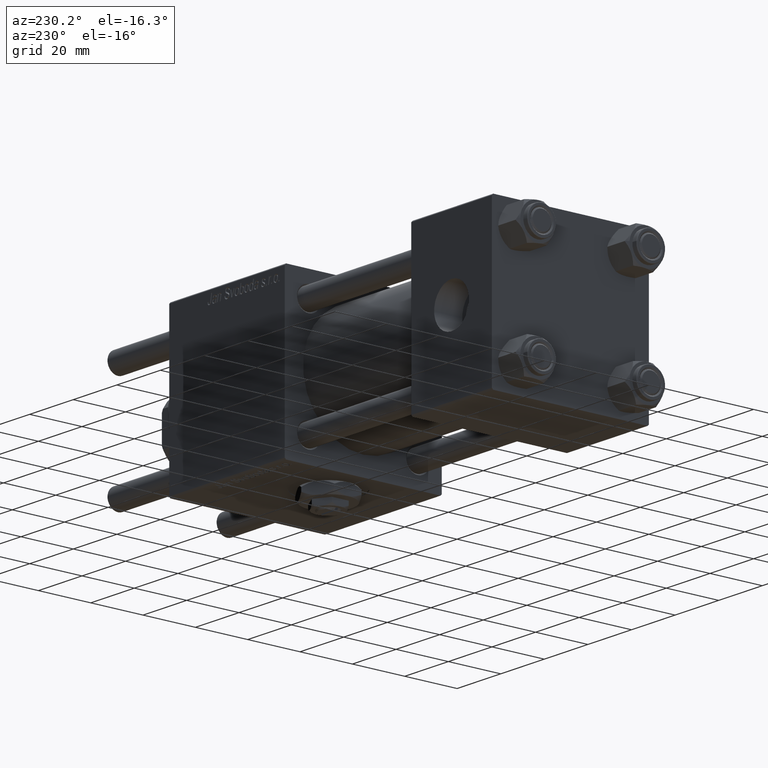
[diagram: clean part render]
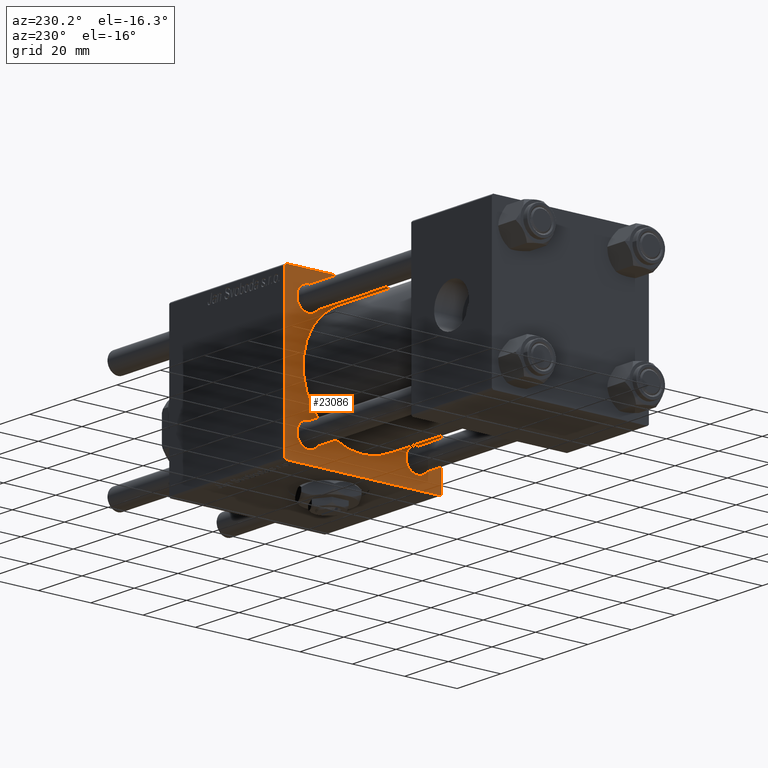
[diagram: same view with one face highlighted and labeled with its STEP entity id]
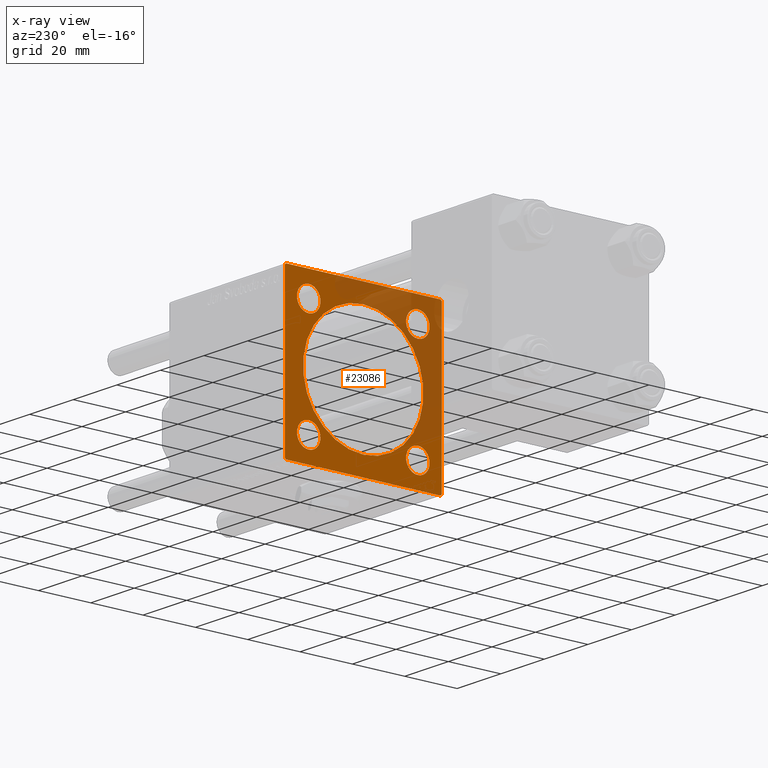
[diagram: x-ray of the same camera — body ghosted, the highlighted face saturated]
A machine part, auxiliary view. The second image highlights one B-rep face of the part: STEP entity #23086.
The next image is the same camera in x-ray: the body ghosted, the highlighted face saturated — about 36% of this face is hidden behind the body in this view.
In plain terms, the highlighted planar face has unit normal (-1, 0, 0).
Its self-contained STEP definition (entity closure, byte-faithful):
#52 = EDGE_CURVE ( 'NONE', #24803, #39205, #38306, .T. ) ;
#177 = EDGE_LOOP ( 'NONE', ( #48567, #34287 ) ) ;
#394 = DIRECTION ( 'NONE',  ( 1.000000000000000000, 0.000000000000000000, 0.000000000000000000 ) ) ;
#636 = ORIENTED_EDGE ( 'NONE', *, *, #4010, .T. ) ;
#1289 = CARTESIAN_POINT ( 'NONE',  ( 95.00000000000000000, 0.000000000000000000, 0.000000000000000000 ) ) ;
#1435 = VERTEX_POINT ( 'NONE', #32237 ) ;
#2900 = AXIS2_PLACEMENT_3D ( 'NONE', #37972, #52809, #15996 ) ;
#4010 = EDGE_CURVE ( 'NONE', #19592, #43082, #28951, .T. ) ;
#4262 = VECTOR ( 'NONE', #32015, 1000.000000000000000 ) ;
#4407 = EDGE_LOOP ( 'NONE', ( #636, #51221 ) ) ;
#4639 = CARTESIAN_POINT ( 'NONE',  ( 95.00000000000000000, -30.00000000000000000, 29.49999999999999289 ) ) ;
#4728 = AXIS2_PLACEMENT_3D ( 'NONE', #49802, #36130, #21317 ) ;
#4962 = CARTESIAN_POINT ( 'NONE',  ( 95.00000000000000000, 20.84999999999999787, 20.85000000000000142 ) ) ;
#5538 = CIRCLE ( 'NONE', #8383, 4.500000000000003553 ) ;
#5591 = CARTESIAN_POINT ( 'NONE',  ( 95.00000000000000000, 30.00000000000000000, -29.99999999999999289 ) ) ;
#6028 = PLANE ( 'NONE',  #40221 ) ;
#6393 = EDGE_CURVE ( 'NONE', #7566, #27292, #54441, .T. ) ;
#7054 = EDGE_CURVE ( 'NONE', #13575, #27292, #19253, .T. ) ;
#7132 = AXIS2_PLACEMENT_3D ( 'NONE', #46277, #10095, #37942 ) ;
#7566 = VERTEX_POINT ( 'NONE', #40720 ) ;
#7574 = VERTEX_POINT ( 'NONE', #37727 ) ;
#7889 = LINE ( 'NONE', #16770, #11975 ) ;
#8178 = CARTESIAN_POINT ( 'NONE',  ( 95.00000000000000000, -20.84999999999999076, -25.35000000000000853 ) ) ;
#8383 = AXIS2_PLACEMENT_3D ( 'NONE', #44668, #40497, #31307 ) ;
#8998 = CIRCLE ( 'NONE', #7132, 4.500000000000003553 ) ;
#9375 = DIRECTION ( 'NONE',  ( 0.000000000000000000, 0.000000000000000000, -1.000000000000000000 ) ) ;
#9466 = LINE ( 'NONE', #5591, #42351 ) ;
#9501 = DIRECTION ( 'NONE',  ( 0.000000000000000000, 0.000000000000000000, 1.000000000000000000 ) ) ;
#9592 = VERTEX_POINT ( 'NONE', #53702 ) ;
#9897 = ORIENTED_EDGE ( 'NONE', *, *, #45207, .T. ) ;
#10095 = DIRECTION ( 'NONE',  ( 1.000000000000000000, -0.000000000000000000, 0.000000000000000000 ) ) ;
#10347 = ORIENTED_EDGE ( 'NONE', *, *, #55401, .T. ) ;
#11140 = VERTEX_POINT ( 'NONE', #53430 ) ;
#11254 = CIRCLE ( 'NONE', #34950, 4.500000000000003553 ) ;
#11975 = VECTOR ( 'NONE', #30998, 1000.000000000000114 ) ;
#12141 = CIRCLE ( 'NONE', #23481, 23.00000000000000000 ) ;
#12396 = CIRCLE ( 'NONE', #2900, 4.500000000000003553 ) ;
#12993 = DIRECTION ( 'NONE',  ( 1.000000000000000000, 0.000000000000000000, 0.000000000000000000 ) ) ;
#13350 = DIRECTION ( 'NONE',  ( 1.000000000000000000, -0.000000000000000000, 0.000000000000000000 ) ) ;
#13484 = CARTESIAN_POINT ( 'NONE',  ( 95.00000000000000000, -29.74999999999999645, -29.74999999999999645 ) ) ;
#13575 = VERTEX_POINT ( 'NONE', #4639 ) ;
#13745 = DIRECTION ( 'NONE',  ( 0.000000000000000000, 0.000000000000000000, -1.000000000000000000 ) ) ;
#14352 = FACE_BOUND ( 'NONE', #22065, .T. ) ;
#14426 = CIRCLE ( 'NONE', #49460, 4.500000000000003553 ) ;
#14488 = DIRECTION ( 'NONE',  ( 0.000000000000000000, -1.000000000000000000, -1.156482317317871478E-16 ) ) ;
#14858 = CARTESIAN_POINT ( 'NONE',  ( 95.00000000000000000, -20.84999999999999076, -20.85000000000000497 ) ) ;
#15344 = LINE ( 'NONE', #56588, #41630 ) ;
#15473 = CARTESIAN_POINT ( 'NONE',  ( 95.00000000000000000, -20.84999999999999076, 25.35000000000000853 ) ) ;
#15691 = AXIS2_PLACEMENT_3D ( 'NONE', #18599, #12993, #21887 ) ;
#15996 = DIRECTION ( 'NONE',  ( 0.000000000000000000, 0.000000000000000000, 1.000000000000000000 ) ) ;
#16173 = EDGE_CURVE ( 'NONE', #7574, #9592, #5538, .T. ) ;
#16770 = CARTESIAN_POINT ( 'NONE',  ( 95.00000000000000000, 29.74999999999999645, -29.74999999999999645 ) ) ;
#16882 = EDGE_LOOP ( 'NONE', ( #48713, #41032 ) ) ;
#17610 = EDGE_CURVE ( 'NONE', #25771, #20305, #11254, .T. ) ;
#18339 = VECTOR ( 'NONE', #25263, 1000.000000000000114 ) ;
#18521 = EDGE_CURVE ( 'NONE', #36003, #1435, #15344, .T. ) ;
#18545 = LINE ( 'NONE', #36345, #37923 ) ;
#18599 = CARTESIAN_POINT ( 'NONE',  ( 95.00000000000000000, -2.602085213965210642E-15, 0.000000000000000000 ) ) ;
#18915 = CIRCLE ( 'NONE', #4728, 4.500000000000003553 ) ;
#19253 = LINE ( 'NONE', #32605, #4262 ) ;
#19301 = DIRECTION ( 'NONE',  ( 0.000000000000000000, 0.000000000000000000, 1.000000000000000000 ) ) ;
#19592 = VERTEX_POINT ( 'NONE', #54257 ) ;
#19637 = EDGE_CURVE ( 'NONE', #39205, #24803, #18915, .T. ) ;
#20305 = VERTEX_POINT ( 'NONE', #53292 ) ;
#21317 = DIRECTION ( 'NONE',  ( 0.000000000000000000, 0.000000000000000000, 1.000000000000000000 ) ) ;
#21390 = CARTESIAN_POINT ( 'NONE',  ( 95.00000000000000000, 2.146024240737012665E-16, -23.00000000000000000 ) ) ;
#21885 = EDGE_CURVE ( 'NONE', #11140, #31469, #8998, .T. ) ;
#21887 = DIRECTION ( 'NONE',  ( 0.000000000000000000, 0.000000000000000000, -1.000000000000000000 ) ) ;
#22065 = EDGE_LOOP ( 'NONE', ( #49309, #32146 ) ) ;
#22343 = DIRECTION ( 'NONE',  ( 0.000000000000000000, 0.000000000000000000, 1.000000000000000000 ) ) ;
#23086 = ADVANCED_FACE ( 'NONE', ( #14352, #23828, #46106, #28565, #33316, #28847 ), #6028, .T. ) ;
#23481 = AXIS2_PLACEMENT_3D ( 'NONE', #45193, #394, #13745 ) ;
#23828 = FACE_BOUND ( 'NONE', #177, .T. ) ;
#23939 = CIRCLE ( 'NONE', #57128, 4.500000000000003553 ) ;
#24746 = DIRECTION ( 'NONE',  ( -0.000000000000000000, 0.7071067811865474617, 0.7071067811865474617 ) ) ;
#24803 = VERTEX_POINT ( 'NONE', #8178 ) ;
#25263 = DIRECTION ( 'NONE',  ( 0.000000000000000000, 0.7071067811865474617, -0.7071067811865474617 ) ) ;
#25771 = VERTEX_POINT ( 'NONE', #39165 ) ;
#27292 = VERTEX_POINT ( 'NONE', #43798 ) ;
#28160 = EDGE_CURVE ( 'NONE', #37102, #45849, #7889, .T. ) ;
#28565 = FACE_BOUND ( 'NONE', #16882, .T. ) ;
#28618 = LINE ( 'NONE', #44027, #29397 ) ;
#28847 = FACE_OUTER_BOUND ( 'NONE', #44883, .T. ) ;
#28951 = CIRCLE ( 'NONE', #15691, 23.00000000000000000 ) ;
#29397 = VECTOR ( 'NONE', #24746, 1000.000000000000114 ) ;
#30586 = EDGE_CURVE ( 'NONE', #45849, #7566, #9466, .T. ) ;
#30637 = CARTESIAN_POINT ( 'NONE',  ( 95.00000000000000000, 30.00000000000000000, -29.49999999999997868 ) ) ;
#30998 = DIRECTION ( 'NONE',  ( -0.000000000000000000, -0.7071067811865474617, -0.7071067811865474617 ) ) ;
#31307 = DIRECTION ( 'NONE',  ( 0.000000000000000000, 0.000000000000000000, 1.000000000000000000 ) ) ;
#31469 = VERTEX_POINT ( 'NONE', #15473 ) ;
#31847 = CARTESIAN_POINT ( 'NONE',  ( 95.00000000000000000, 20.84999999999999787, -20.85000000000000142 ) ) ;
#32015 = DIRECTION ( 'NONE',  ( 0.000000000000000000, 0.000000000000000000, -1.000000000000000000 ) ) ;
#32146 = ORIENTED_EDGE ( 'NONE', *, *, #21885, .T. ) ;
#32237 = CARTESIAN_POINT ( 'NONE',  ( 95.00000000000000000, -29.50000000000000000, 29.99999999999999289 ) ) ;
#32605 = CARTESIAN_POINT ( 'NONE',  ( 95.00000000000000000, -30.00000000000000000, 29.99999999999999289 ) ) ;
#33316 = FACE_BOUND ( 'NONE', #4407, .T. ) ;
#34207 = EDGE_CURVE ( 'NONE', #43082, #19592, #12141, .T. ) ;
#34287 = ORIENTED_EDGE ( 'NONE', *, *, #17610, .T. ) ;
#34950 = AXIS2_PLACEMENT_3D ( 'NONE', #4962, #53945, #40562 ) ;
#35770 = ORIENTED_EDGE ( 'NONE', *, *, #45121, .T. ) ;
#36003 = VERTEX_POINT ( 'NONE', #58453 ) ;
#36130 = DIRECTION ( 'NONE',  ( 1.000000000000000000, -0.000000000000000000, 0.000000000000000000 ) ) ;
#36345 = CARTESIAN_POINT ( 'NONE',  ( 95.00000000000000000, 30.00000000000000000, 30.00000000000000000 ) ) ;
#36577 = DIRECTION ( 'NONE',  ( 1.000000000000000000, -0.000000000000000000, 0.000000000000000000 ) ) ;
#37102 = VERTEX_POINT ( 'NONE', #30637 ) ;
#37470 = DIRECTION ( 'NONE',  ( -1.000000000000000000, 0.000000000000000000, -0.000000000000000000 ) ) ;
#37727 = CARTESIAN_POINT ( 'NONE',  ( 95.00000000000000000, 20.84999999999999787, -25.35000000000000497 ) ) ;
#37763 = DIRECTION ( 'NONE',  ( -0.000000000000000000, 0.000000000000000000, 1.000000000000000000 ) ) ;
#37923 = VECTOR ( 'NONE', #9375, 1000.000000000000000 ) ;
#37942 = DIRECTION ( 'NONE',  ( 0.000000000000000000, 0.000000000000000000, 1.000000000000000000 ) ) ;
#37972 = CARTESIAN_POINT ( 'NONE',  ( 95.00000000000000000, -20.84999999999999076, 20.85000000000000497 ) ) ;
#38306 = CIRCLE ( 'NONE', #48749, 4.500000000000003553 ) ;
#38410 = ORIENTED_EDGE ( 'NONE', *, *, #30586, .T. ) ;
#39165 = CARTESIAN_POINT ( 'NONE',  ( 95.00000000000000000, 20.84999999999999787, 16.34999999999999787 ) ) ;
#39205 = VERTEX_POINT ( 'NONE', #48402 ) ;
#39884 = ORIENTED_EDGE ( 'NONE', *, *, #18521, .F. ) ;
#40221 = AXIS2_PLACEMENT_3D ( 'NONE', #1289, #37470, #37763 ) ;
#40227 = ORIENTED_EDGE ( 'NONE', *, *, #28160, .T. ) ;
#40497 = DIRECTION ( 'NONE',  ( 1.000000000000000000, -0.000000000000000000, 0.000000000000000000 ) ) ;
#40562 = DIRECTION ( 'NONE',  ( 0.000000000000000000, 0.000000000000000000, 1.000000000000000000 ) ) ;
#40720 = CARTESIAN_POINT ( 'NONE',  ( 95.00000000000000000, -29.50000000000000000, -30.00000000000000000 ) ) ;
#41032 = ORIENTED_EDGE ( 'NONE', *, *, #52, .T. ) ;
#41630 = VECTOR ( 'NONE', #46220, 1000.000000000000000 ) ;
#42351 = VECTOR ( 'NONE', #14488, 1000.000000000000000 ) ;
#42751 = ORIENTED_EDGE ( 'NONE', *, *, #16173, .T. ) ;
#42806 = CARTESIAN_POINT ( 'NONE',  ( 95.00000000000000000, 29.74999999999999645, 29.74999999999999645 ) ) ;
#42883 = EDGE_LOOP ( 'NONE', ( #50929, #42751 ) ) ;
#43018 = DIRECTION ( 'NONE',  ( 1.000000000000000000, -0.000000000000000000, 0.000000000000000000 ) ) ;
#43082 = VERTEX_POINT ( 'NONE', #21390 ) ;
#43798 = CARTESIAN_POINT ( 'NONE',  ( 95.00000000000000000, -30.00000000000000000, -29.49999999999998579 ) ) ;
#44027 = CARTESIAN_POINT ( 'NONE',  ( 95.00000000000000000, -29.74999999999999645, 29.74999999999999645 ) ) ;
#44668 = CARTESIAN_POINT ( 'NONE',  ( 95.00000000000000000, 20.84999999999999787, -20.85000000000000142 ) ) ;
#44883 = EDGE_LOOP ( 'NONE', ( #38410, #50688, #56971, #9897, #39884, #10347, #35770, #40227 ) ) ;
#45121 = EDGE_CURVE ( 'NONE', #47972, #37102, #18545, .T. ) ;
#45193 = CARTESIAN_POINT ( 'NONE',  ( 95.00000000000000000, -2.602085213965210642E-15, 0.000000000000000000 ) ) ;
#45207 = EDGE_CURVE ( 'NONE', #13575, #1435, #28618, .T. ) ;
#45769 = EDGE_CURVE ( 'NONE', #31469, #11140, #12396, .T. ) ;
#45849 = VERTEX_POINT ( 'NONE', #53979 ) ;
#45992 = VECTOR ( 'NONE', #50292, 1000.000000000000114 ) ;
#46106 = FACE_BOUND ( 'NONE', #42883, .T. ) ;
#46220 = DIRECTION ( 'NONE',  ( 0.000000000000000000, -1.000000000000000000, -1.156482317317871478E-16 ) ) ;
#46277 = CARTESIAN_POINT ( 'NONE',  ( 95.00000000000000000, -20.84999999999999076, 20.85000000000000497 ) ) ;
#47972 = VERTEX_POINT ( 'NONE', #50809 ) ;
#48402 = CARTESIAN_POINT ( 'NONE',  ( 95.00000000000000000, -20.84999999999999076, -16.35000000000000142 ) ) ;
#48567 = ORIENTED_EDGE ( 'NONE', *, *, #53729, .T. ) ;
#48713 = ORIENTED_EDGE ( 'NONE', *, *, #19637, .T. ) ;
#48749 = AXIS2_PLACEMENT_3D ( 'NONE', #14858, #43018, #19301 ) ;
#49309 = ORIENTED_EDGE ( 'NONE', *, *, #45769, .T. ) ;
#49460 = AXIS2_PLACEMENT_3D ( 'NONE', #31847, #36577, #22343 ) ;
#49802 = CARTESIAN_POINT ( 'NONE',  ( 95.00000000000000000, -20.84999999999999076, -20.85000000000000497 ) ) ;
#50214 = EDGE_CURVE ( 'NONE', #9592, #7574, #14426, .T. ) ;
#50292 = DIRECTION ( 'NONE',  ( 0.000000000000000000, -0.7071067811865474617, 0.7071067811865474617 ) ) ;
#50688 = ORIENTED_EDGE ( 'NONE', *, *, #6393, .T. ) ;
#50809 = CARTESIAN_POINT ( 'NONE',  ( 95.00000000000000000, 30.00000000000000000, 29.50000000000000000 ) ) ;
#50929 = ORIENTED_EDGE ( 'NONE', *, *, #50214, .T. ) ;
#51221 = ORIENTED_EDGE ( 'NONE', *, *, #34207, .T. ) ;
#52009 = LINE ( 'NONE', #42806, #18339 ) ;
#52809 = DIRECTION ( 'NONE',  ( 1.000000000000000000, -0.000000000000000000, 0.000000000000000000 ) ) ;
#53292 = CARTESIAN_POINT ( 'NONE',  ( 95.00000000000000000, 20.84999999999999787, 25.35000000000000497 ) ) ;
#53430 = CARTESIAN_POINT ( 'NONE',  ( 95.00000000000000000, -20.84999999999999076, 16.35000000000000142 ) ) ;
#53702 = CARTESIAN_POINT ( 'NONE',  ( 95.00000000000000000, 20.84999999999999787, -16.34999999999999787 ) ) ;
#53729 = EDGE_CURVE ( 'NONE', #20305, #25771, #23939, .T. ) ;
#53945 = DIRECTION ( 'NONE',  ( 1.000000000000000000, -0.000000000000000000, 0.000000000000000000 ) ) ;
#53979 = CARTESIAN_POINT ( 'NONE',  ( 95.00000000000000000, 29.50000000000000000, -29.99999999999999289 ) ) ;
#54018 = CARTESIAN_POINT ( 'NONE',  ( 95.00000000000000000, 20.84999999999999787, 20.85000000000000142 ) ) ;
#54257 = CARTESIAN_POINT ( 'NONE',  ( 95.00000000000000000, -2.602085213965210642E-15, 23.00000000000000000 ) ) ;
#54441 = LINE ( 'NONE', #13484, #45992 ) ;
#55401 = EDGE_CURVE ( 'NONE', #36003, #47972, #52009, .T. ) ;
#56588 = CARTESIAN_POINT ( 'NONE',  ( 95.00000000000000000, 30.00000000000000000, 30.00000000000000000 ) ) ;
#56971 = ORIENTED_EDGE ( 'NONE', *, *, #7054, .F. ) ;
#57128 = AXIS2_PLACEMENT_3D ( 'NONE', #54018, #13350, #9501 ) ;
#58453 = CARTESIAN_POINT ( 'NONE',  ( 95.00000000000000000, 29.50000000000000000, 30.00000000000000000 ) ) ;